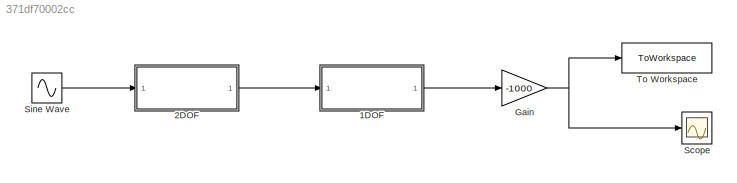
MODEL slx_371df70002cc
KIND model
CONFIG AbsTol = auto
CONFIG EnableMultiTasking = off
CONFIG FixedStep = 0.001
CONFIG MaxStep = auto
CONFIG MinStep = auto
CONFIG RelTol = 1e-3
CONFIG SampleTimeConstraint = Unconstrained
CONFIG Solver = ode4
CONFIG SolverName = ode4
CONFIG StartTime = 0.0
CONFIG StopTime = 10.0
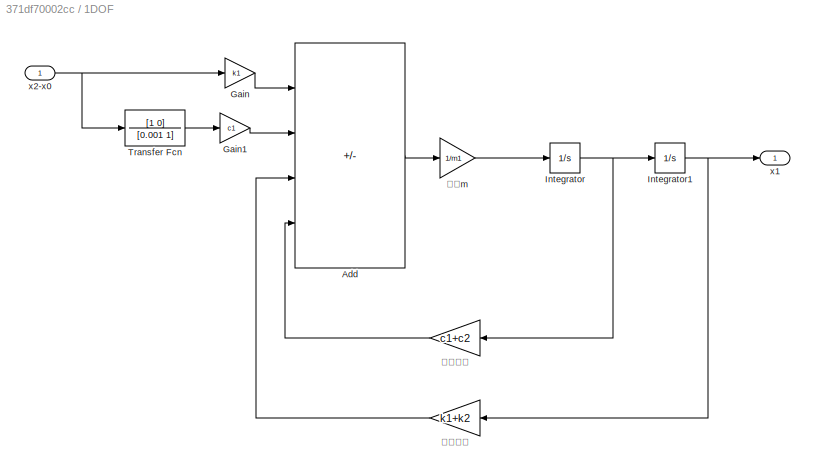
BLOCK [SubSystem] 1DOF
  Ports = [1, 1]
  RequestExecContextInheritance = off
BLOCK [Sum] 1DOF/Add
  IconShape = rectangular
  Inputs = ++--
  Ports = [4, 1]
BLOCK [Gain] 1DOF/Gain
  Gain = k1
BLOCK [Gain] 1DOF/Gain1
  Gain = c1
BLOCK [Integrator] 1DOF/Integrator
  Ports = [1, 1]
BLOCK [Integrator] 1DOF/Integrator1
  Ports = [1, 1]
BLOCK [TransferFcn] 1DOF/Transfer Fcn
  Denominator = [0.001 1]
  Numerator = [1 0]
BLOCK [Outport] 1DOF/x1
BLOCK [Inport] 1DOF/x2-x0
BLOCK [Gain] 1DOF/ばね定数 
  Gain = k1+k2
BLOCK [Gain] 1DOF/減衰係数
  Gain = c1+c2
BLOCK [Gain] 1DOF/質量m
  Gain = 1/m1
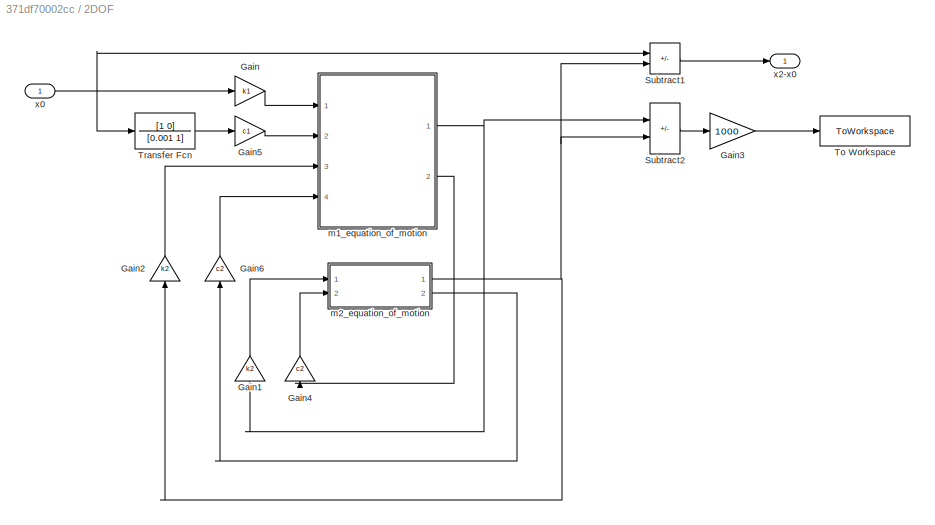
BLOCK [SubSystem] 2DOF
  Ports = [1, 1]
  RequestExecContextInheritance = off
BLOCK [Gain] 2DOF/Gain
  Gain = k1
BLOCK [Gain] 2DOF/Gain1
  Gain = k2
  NameLocation = right
BLOCK [Gain] 2DOF/Gain2
  Gain = k2
  NameLocation = right
BLOCK [Gain] 2DOF/Gain3
  Gain = 1000
BLOCK [Gain] 2DOF/Gain4
  Gain = c2
  NameLocation = right
BLOCK [Gain] 2DOF/Gain5
  Gain = c1
BLOCK [Gain] 2DOF/Gain6
  Gain = c2
  NameLocation = right
BLOCK [Sum] 2DOF/Subtract1
  IconShape = rectangular
  Inputs = +-
  Ports = [2, 1]
BLOCK [Sum] 2DOF/Subtract2
  IconShape = rectangular
  Inputs = -+
  Ports = [2, 1]
BLOCK [ToWorkspace] 2DOF/To Workspace
  FixptAsFi = on
  MaxDataPoints = inf
  Ports = [1]
  SampleTime = -1
  SaveFormat = Timeseries
  VariableName = sus_2d
BLOCK [TransferFcn] 2DOF/Transfer Fcn
  Denominator = [0.001 1]
  Numerator = [1 0]
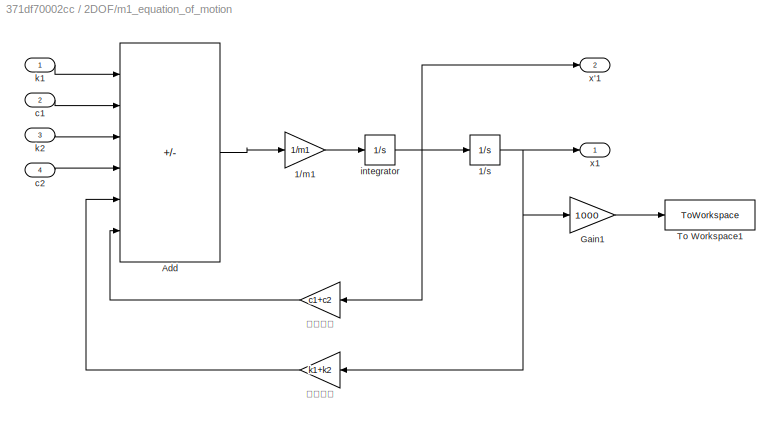
BLOCK [SubSystem] 2DOF/m1_equation_of_motion
  Ports = [4, 2]
  RequestExecContextInheritance = off
BLOCK [Gain] 2DOF/m1_equation_of_motion/1//m1
  Gain = 1/m1
BLOCK [Integrator] 2DOF/m1_equation_of_motion/1//s
  Ports = [1, 1]
BLOCK [Sum] 2DOF/m1_equation_of_motion/Add
  IconShape = rectangular
  Inputs = ++++--
  Ports = [6, 1]
BLOCK [Gain] 2DOF/m1_equation_of_motion/Gain1
  Gain = 1000
BLOCK [ToWorkspace] 2DOF/m1_equation_of_motion/To Workspace1
  FixptAsFi = on
  MaxDataPoints = inf
  Ports = [1]
  SampleTime = -1
  SaveFormat = Timeseries
  VariableName = x1
BLOCK [Inport] 2DOF/m1_equation_of_motion/c1
  Port = 2
BLOCK [Inport] 2DOF/m1_equation_of_motion/c2
  IconDisplay = Port number and signal name
  Port = 4
BLOCK [Integrator] 2DOF/m1_equation_of_motion/integrator
  Ports = [1, 1]
BLOCK [Inport] 2DOF/m1_equation_of_motion/k1
  IconDisplay = Port number and signal name
BLOCK [Inport] 2DOF/m1_equation_of_motion/k2
  IconDisplay = Port number and signal name
  Port = 3
BLOCK [Outport] 2DOF/m1_equation_of_motion/x'1
  Port = 2
BLOCK [Outport] 2DOF/m1_equation_of_motion/x1
BLOCK [Gain] 2DOF/m1_equation_of_motion/ばね定数
  Gain = k1+k2
BLOCK [Gain] 2DOF/m1_equation_of_motion/減衰係数
  Gain = c1+c2
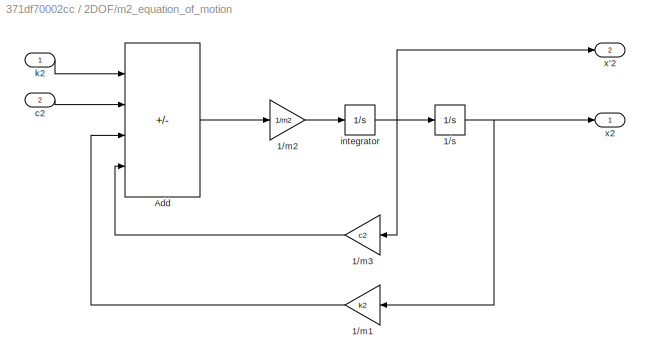
BLOCK [SubSystem] 2DOF/m2_equation_of_motion
  Ports = [2, 2]
  RequestExecContextInheritance = off
BLOCK [Gain] 2DOF/m2_equation_of_motion/1//m1
  Gain = k2
BLOCK [Gain] 2DOF/m2_equation_of_motion/1//m2
  Gain = 1/m2
BLOCK [Gain] 2DOF/m2_equation_of_motion/1//m3
  Gain = c2
BLOCK [Integrator] 2DOF/m2_equation_of_motion/1//s
  Ports = [1, 1]
BLOCK [Sum] 2DOF/m2_equation_of_motion/Add
  IconShape = rectangular
  Inputs = ++--
  Ports = [4, 1]
BLOCK [Inport] 2DOF/m2_equation_of_motion/c2
  Port = 2
BLOCK [Integrator] 2DOF/m2_equation_of_motion/integrator
  Ports = [1, 1]
BLOCK [Inport] 2DOF/m2_equation_of_motion/k2 
BLOCK [Outport] 2DOF/m2_equation_of_motion/x'2
  Port = 2
BLOCK [Outport] 2DOF/m2_equation_of_motion/x2
BLOCK [Inport] 2DOF/x0
BLOCK [Outport] 2DOF/x2-x0
BLOCK [Gain] Gain
  Gain = -1000
BLOCK [Scope] Scope
  Floating = off
  NumInputPorts = 1
  Ports = [1]
  ScopeSpecificationString = Simulink.scopes.TimeScopeBlockCfg('CurrentConfiguration', extmgr.ConfigurationSet(extmgr.Configuration('Core','General UI',true),extmgr.Configuration('Core','Source UI',true),extmgr.Configuration('Sources','WiredSimulink',true,'DataLoggingVariableName','ScopeData1'),extmgr.Configuration('Visuals','Time Domain',true,'SerializedDisplays',{struct('MinYLimReal','-12.87033','MaxYLimReal','13.67535','YL...<+1396ch>
BLOCK [Sin] Sine Wave
  Amplitude = 0.003
  Frequency = 2*pi
  Ports = [0, 1]
  SampleTime = 0
BLOCK [ToWorkspace] To Workspace
  FixptAsFi = on
  MaxDataPoints = inf
  Ports = [1]
  SampleTime = -1
  SaveFormat = Timeseries
  VariableName = sus_1d
LINE 1DOF/Add:1 -> 1DOF/質量m:1
LINE 1DOF/Gain1:1 -> 1DOF/Add:2
LINE 1DOF/Gain:1 -> 1DOF/Add:1
NET 1DOF/Integrator1:1 -> 1DOF/x1:1, 1DOF/ばね定数 :1
NET 1DOF/Integrator:1 -> 1DOF/Integrator1:1, 1DOF/減衰係数:1
LINE 1DOF/Transfer Fcn:1 -> 1DOF/Gain1:1
NET 1DOF/x2-x0:1 -> 1DOF/Gain:1, 1DOF/Transfer Fcn:1
LINE 1DOF/ばね定数 :1 -> 1DOF/Add:3
LINE 1DOF/減衰係数:1 -> 1DOF/Add:4
LINE 1DOF/質量m:1 -> 1DOF/Integrator:1
LINE 1DOF:1 -> Gain:1
LINE 2DOF/Gain1:1 -> 2DOF/m2_equation_of_motion:1
LINE 2DOF/Gain2:1 -> 2DOF/m1_equation_of_motion:3
LINE 2DOF/Gain3:1 -> 2DOF/To Workspace:1
LINE 2DOF/Gain4:1 -> 2DOF/m2_equation_of_motion:2
LINE 2DOF/Gain5:1 -> 2DOF/m1_equation_of_motion:2
LINE 2DOF/Gain6:1 -> 2DOF/m1_equation_of_motion:4
LINE 2DOF/Gain:1 -> 2DOF/m1_equation_of_motion:1
LINE 2DOF/Subtract1:1 -> 2DOF/x2-x0:1
LINE 2DOF/Subtract2:1 -> 2DOF/Gain3:1
LINE 2DOF/Transfer Fcn:1 -> 2DOF/Gain5:1
LINE 2DOF/m1_equation_of_motion/1//m1:1 -> 2DOF/m1_equation_of_motion/integrator:1
NET 2DOF/m1_equation_of_motion/1//s:1 -> 2DOF/m1_equation_of_motion/Gain1:1, 2DOF/m1_equation_of_motion/x1:1, 2DOF/m1_equation_of_motion/ばね定数:1
LINE 2DOF/m1_equation_of_motion/Add:1 -> 2DOF/m1_equation_of_motion/1//m1:1
LINE 2DOF/m1_equation_of_motion/Gain1:1 -> 2DOF/m1_equation_of_motion/To Workspace1:1
LINE 2DOF/m1_equation_of_motion/c1:1 -> 2DOF/m1_equation_of_motion/Add:2
LINE 2DOF/m1_equation_of_motion/c2:1 -> 2DOF/m1_equation_of_motion/Add:4
NET 2DOF/m1_equation_of_motion/integrator:1 -> 2DOF/m1_equation_of_motion/1//s:1, 2DOF/m1_equation_of_motion/x'1:1, 2DOF/m1_equation_of_motion/減衰係数:1
LINE 2DOF/m1_equation_of_motion/k1:1 -> 2DOF/m1_equation_of_motion/Add:1
LINE 2DOF/m1_equation_of_motion/k2:1 -> 2DOF/m1_equation_of_motion/Add:3
LINE 2DOF/m1_equation_of_motion/ばね定数:1 -> 2DOF/m1_equation_of_motion/Add:5
LINE 2DOF/m1_equation_of_motion/減衰係数:1 -> 2DOF/m1_equation_of_motion/Add:6
NET 2DOF/m1_equation_of_motion:1 -> 2DOF/Gain1:1, 2DOF/Subtract2:1
LINE 2DOF/m1_equation_of_motion:2 -> 2DOF/Gain4:1
LINE 2DOF/m2_equation_of_motion/1//m1:1 -> 2DOF/m2_equation_of_motion/Add:3
LINE 2DOF/m2_equation_of_motion/1//m2:1 -> 2DOF/m2_equation_of_motion/integrator:1
LINE 2DOF/m2_equation_of_motion/1//m3:1 -> 2DOF/m2_equation_of_motion/Add:4
NET 2DOF/m2_equation_of_motion/1//s:1 -> 2DOF/m2_equation_of_motion/1//m1:1, 2DOF/m2_equation_of_motion/x2:1
LINE 2DOF/m2_equation_of_motion/Add:1 -> 2DOF/m2_equation_of_motion/1//m2:1
LINE 2DOF/m2_equation_of_motion/c2:1 -> 2DOF/m2_equation_of_motion/Add:2
NET 2DOF/m2_equation_of_motion/integrator:1 -> 2DOF/m2_equation_of_motion/1//m3:1, 2DOF/m2_equation_of_motion/1//s:1, 2DOF/m2_equation_of_motion/x'2:1
LINE 2DOF/m2_equation_of_motion/k2 :1 -> 2DOF/m2_equation_of_motion/Add:1
NET 2DOF/m2_equation_of_motion:1 -> 2DOF/Gain2:1, 2DOF/Subtract1:2, 2DOF/Subtract2:2
LINE 2DOF/m2_equation_of_motion:2 -> 2DOF/Gain6:1
NET 2DOF/x0:1 -> 2DOF/Gain:1, 2DOF/Subtract1:1, 2DOF/Transfer Fcn:1
LINE 2DOF:1 -> 1DOF:1
NET Gain:1 -> Scope:1, To Workspace:1
LINE Sine Wave:1 -> 2DOF:1
note: NET lines group one-source signal fan-out (src -> all destinations, sorted); 1:1 wires keep LINE
